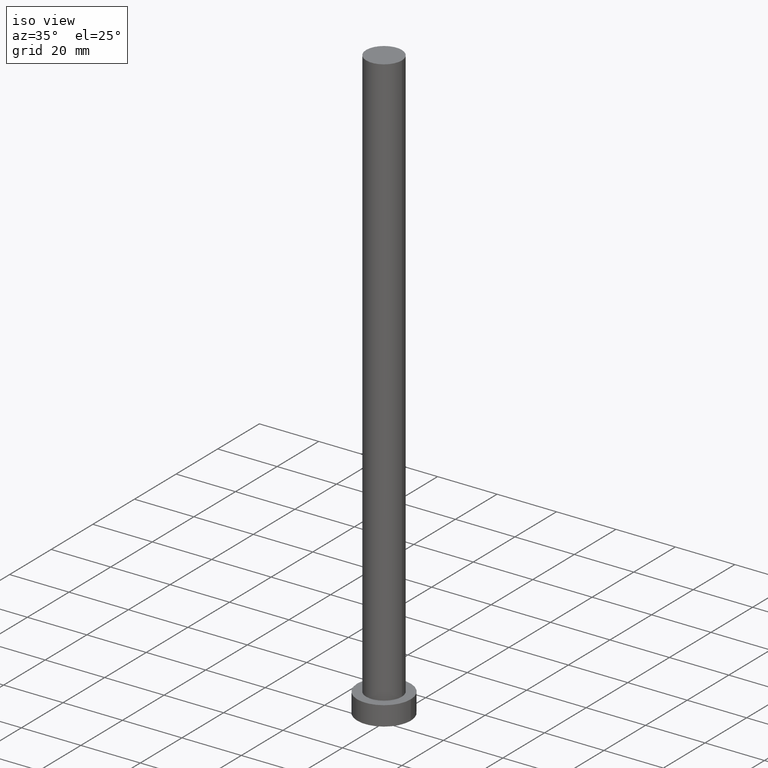
[diagram: clean part render]
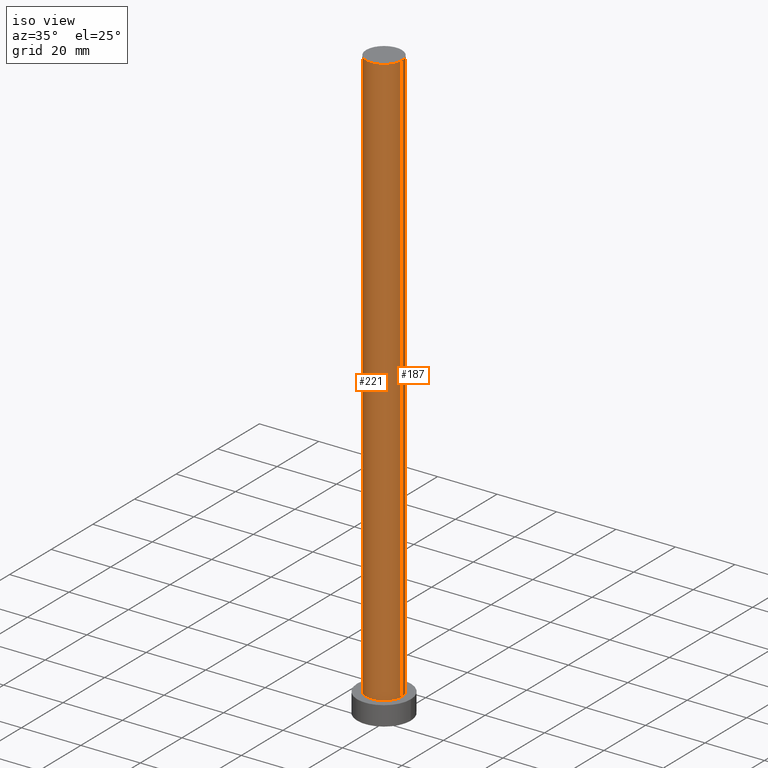
[diagram: same view with one multi-face feature highlighted, each face labeled with its STEP entity id]
A machine part, iso view. The highlighted faces form ONE feature: a constant-radius fillet chain: 2 tangent blend faces with common blend radius 6 mm. The faces share edges in the B-rep.
Their STEP definitions:
[1] entity #187 (Cylinder):
#8 = AXIS2_PLACEMENT_3D ( 'NONE', #98, #82, #218 ) ;
#16 = VERTEX_POINT ( 'NONE', #97 ) ;
#17 = DIRECTION ( 'NONE',  ( 0.000000000000000000, 0.000000000000000000, 1.000000000000000000 ) ) ;
#26 = CARTESIAN_POINT ( 'NONE',  ( -6.000000000000000888, 0.000000000000000000, 200.0000000000000000 ) ) ;
#30 = CIRCLE ( 'NONE', #8, 6.000000000000000888 ) ;
#31 = DIRECTION ( 'NONE',  ( -1.000000000000000000, 0.000000000000000000, 0.000000000000000000 ) ) ;
#56 = CARTESIAN_POINT ( 'NONE',  ( -6.000000000000000888, 0.000000000000000000, 6.500000000000000000 ) ) ;
#57 = DIRECTION ( 'NONE',  ( -0.000000000000000000, -0.000000000000000000, -1.000000000000000000 ) ) ;
#63 = EDGE_CURVE ( 'NONE', #174, #209, #236, .T. ) ;
#65 = DIRECTION ( 'NONE',  ( 1.000000000000000000, 0.000000000000000000, 0.000000000000000000 ) ) ;
#70 = DIRECTION ( 'NONE',  ( -0.000000000000000000, -0.000000000000000000, -1.000000000000000000 ) ) ;
#75 = CARTESIAN_POINT ( 'NONE',  ( 0.000000000000000000, 0.000000000000000000, 200.0000000000000000 ) ) ;
#80 = DIRECTION ( 'NONE',  ( -0.000000000000000000, -0.000000000000000000, -1.000000000000000000 ) ) ;
#82 = DIRECTION ( 'NONE',  ( 0.000000000000000000, 0.000000000000000000, 1.000000000000000000 ) ) ;
#83 = CARTESIAN_POINT ( 'NONE',  ( -6.000000000000000888, 0.000000000000000000, 200.0000000000000000 ) ) ;
#92 = ORIENTED_EDGE ( 'NONE', *, *, #166, .F. ) ;
#94 = CIRCLE ( 'NONE', #192, 6.000000000000000888 ) ;
#97 = CARTESIAN_POINT ( 'NONE',  ( 6.000000000000000888, 7.347880794884120722E-16, 200.0000000000000000 ) ) ;
#98 = CARTESIAN_POINT ( 'NONE',  ( 0.000000000000000000, 0.000000000000000000, 6.500000000000000000 ) ) ;
#107 = CARTESIAN_POINT ( 'NONE',  ( 0.000000000000000000, 0.000000000000000000, 200.0000000000000000 ) ) ;
#112 = EDGE_CURVE ( 'NONE', #224, #209, #30, .T. ) ;
#143 = EDGE_CURVE ( 'NONE', #16, #224, #216, .T. ) ;
#147 = VECTOR ( 'NONE', #57, 1000.000000000000000 ) ;
#151 = ORIENTED_EDGE ( 'NONE', *, *, #63, .F. ) ;
#158 = CARTESIAN_POINT ( 'NONE',  ( 6.000000000000000888, 7.347880794884120722E-16, 200.0000000000000000 ) ) ;
#166 = EDGE_CURVE ( 'NONE', #16, #174, #94, .T. ) ;
#174 = VERTEX_POINT ( 'NONE', #26 ) ;
#179 = VECTOR ( 'NONE', #80, 1000.000000000000000 ) ;
#187 = ADVANCED_FACE ( 'NONE', ( #242 ), #234, .T. ) ;
#192 = AXIS2_PLACEMENT_3D ( 'NONE', #107, #17, #65 ) ;
#193 = CARTESIAN_POINT ( 'NONE',  ( 6.000000000000000888, 7.347880794884120722E-16, 6.500000000000000000 ) ) ;
#196 = AXIS2_PLACEMENT_3D ( 'NONE', #75, #70, #31 ) ;
#209 = VERTEX_POINT ( 'NONE', #56 ) ;
#216 = LINE ( 'NONE', #158, #147 ) ;
#218 = DIRECTION ( 'NONE',  ( 1.000000000000000000, 0.000000000000000000, 0.000000000000000000 ) ) ;
#224 = VERTEX_POINT ( 'NONE', #193 ) ;
#232 = EDGE_LOOP ( 'NONE', ( #92, #239, #255, #151 ) ) ;
#234 = CYLINDRICAL_SURFACE ( 'NONE', #196, 6.000000000000000888 ) ;
#236 = LINE ( 'NONE', #83, #179 ) ;
#239 = ORIENTED_EDGE ( 'NONE', *, *, #143, .T. ) ;
#242 = FACE_OUTER_BOUND ( 'NONE', #232, .T. ) ;
#255 = ORIENTED_EDGE ( 'NONE', *, *, #112, .T. ) ;
[2] entity #221 (Cylinder):
#16 = VERTEX_POINT ( 'NONE', #97 ) ;
#25 = DIRECTION ( 'NONE',  ( -1.000000000000000000, 0.000000000000000000, 0.000000000000000000 ) ) ;
#26 = CARTESIAN_POINT ( 'NONE',  ( -6.000000000000000888, 0.000000000000000000, 200.0000000000000000 ) ) ;
#41 = DIRECTION ( 'NONE',  ( 0.000000000000000000, 0.000000000000000000, 1.000000000000000000 ) ) ;
#42 = EDGE_LOOP ( 'NONE', ( #206, #227, #50, #240 ) ) ;
#45 = CIRCLE ( 'NONE', #188, 6.000000000000000888 ) ;
#50 = ORIENTED_EDGE ( 'NONE', *, *, #63, .T. ) ;
#53 = EDGE_CURVE ( 'NONE', #209, #224, #117, .T. ) ;
#56 = CARTESIAN_POINT ( 'NONE',  ( -6.000000000000000888, 0.000000000000000000, 6.500000000000000000 ) ) ;
#57 = DIRECTION ( 'NONE',  ( -0.000000000000000000, -0.000000000000000000, -1.000000000000000000 ) ) ;
#63 = EDGE_CURVE ( 'NONE', #174, #209, #236, .T. ) ;
#77 = CARTESIAN_POINT ( 'NONE',  ( 0.000000000000000000, 0.000000000000000000, 200.0000000000000000 ) ) ;
#80 = DIRECTION ( 'NONE',  ( -0.000000000000000000, -0.000000000000000000, -1.000000000000000000 ) ) ;
#83 = CARTESIAN_POINT ( 'NONE',  ( -6.000000000000000888, 0.000000000000000000, 200.0000000000000000 ) ) ;
#85 = CARTESIAN_POINT ( 'NONE',  ( 0.000000000000000000, 0.000000000000000000, 200.0000000000000000 ) ) ;
#97 = CARTESIAN_POINT ( 'NONE',  ( 6.000000000000000888, 7.347880794884120722E-16, 200.0000000000000000 ) ) ;
#110 = AXIS2_PLACEMENT_3D ( 'NONE', #222, #41, #195 ) ;
#113 = DIRECTION ( 'NONE',  ( 0.000000000000000000, 0.000000000000000000, 1.000000000000000000 ) ) ;
#117 = CIRCLE ( 'NONE', #110, 6.000000000000000888 ) ;
#134 = CYLINDRICAL_SURFACE ( 'NONE', #217, 6.000000000000000888 ) ;
#143 = EDGE_CURVE ( 'NONE', #16, #224, #216, .T. ) ;
#147 = VECTOR ( 'NONE', #57, 1000.000000000000000 ) ;
#149 = DIRECTION ( 'NONE',  ( -0.000000000000000000, -0.000000000000000000, -1.000000000000000000 ) ) ;
#152 = DIRECTION ( 'NONE',  ( 1.000000000000000000, 0.000000000000000000, 0.000000000000000000 ) ) ;
#155 = FACE_OUTER_BOUND ( 'NONE', #42, .T. ) ;
#158 = CARTESIAN_POINT ( 'NONE',  ( 6.000000000000000888, 7.347880794884120722E-16, 200.0000000000000000 ) ) ;
#174 = VERTEX_POINT ( 'NONE', #26 ) ;
#179 = VECTOR ( 'NONE', #80, 1000.000000000000000 ) ;
#188 = AXIS2_PLACEMENT_3D ( 'NONE', #77, #113, #152 ) ;
#190 = EDGE_CURVE ( 'NONE', #174, #16, #45, .T. ) ;
#193 = CARTESIAN_POINT ( 'NONE',  ( 6.000000000000000888, 7.347880794884120722E-16, 6.500000000000000000 ) ) ;
#195 = DIRECTION ( 'NONE',  ( 1.000000000000000000, 0.000000000000000000, 0.000000000000000000 ) ) ;
#206 = ORIENTED_EDGE ( 'NONE', *, *, #143, .F. ) ;
#209 = VERTEX_POINT ( 'NONE', #56 ) ;
#216 = LINE ( 'NONE', #158, #147 ) ;
#217 = AXIS2_PLACEMENT_3D ( 'NONE', #85, #149, #25 ) ;
#221 = ADVANCED_FACE ( 'NONE', ( #155 ), #134, .T. ) ;
#222 = CARTESIAN_POINT ( 'NONE',  ( 0.000000000000000000, 0.000000000000000000, 6.500000000000000000 ) ) ;
#224 = VERTEX_POINT ( 'NONE', #193 ) ;
#227 = ORIENTED_EDGE ( 'NONE', *, *, #190, .F. ) ;
#236 = LINE ( 'NONE', #83, #179 ) ;
#240 = ORIENTED_EDGE ( 'NONE', *, *, #53, .T. ) ;